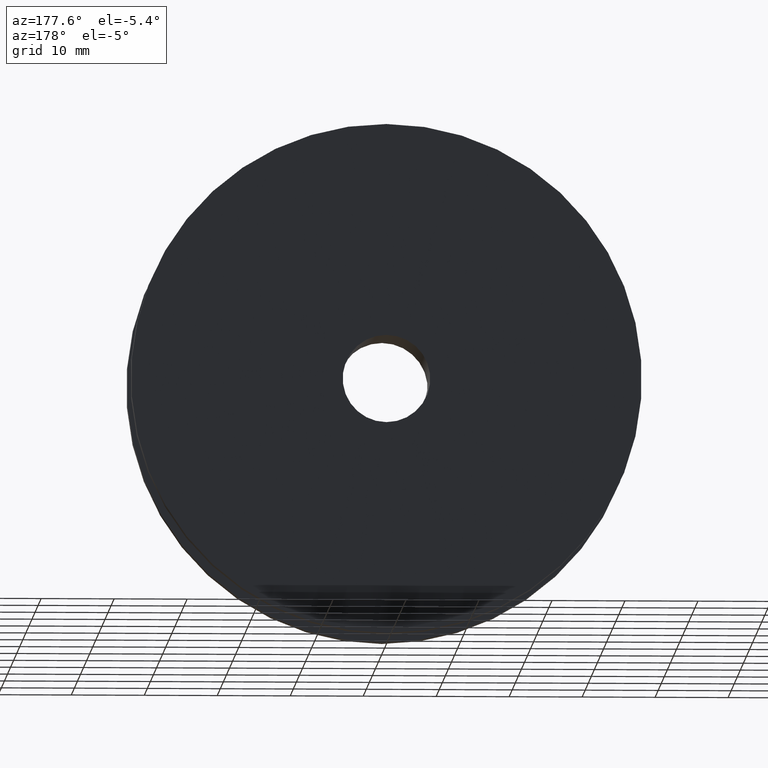
[diagram: clean part render]
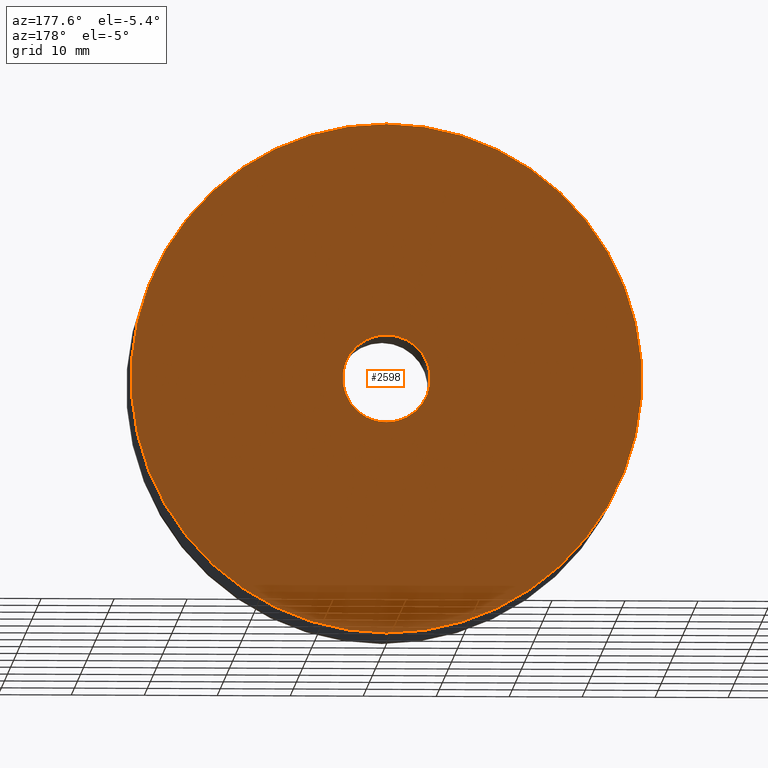
[diagram: same view with one face highlighted and labeled with its STEP entity id]
A machine part, auxiliary view. The second image highlights one B-rep face of the part: STEP entity #2598.
In plain terms, the highlighted planar face has unit normal (0, 1, 0).
Its self-contained STEP definition (entity closure, byte-faithful):
#88 = DIRECTION ( 'NONE',  ( 0.000000000000000000, 1.000000000000000000, 0.000000000000000000 ) ) ;
#150 = EDGE_CURVE ( 'NONE', #5781, #8850, #11963, .T. ) ;
#222 = AXIS2_PLACEMENT_3D ( 'NONE', #9701, #88, #2844 ) ;
#451 = CIRCLE ( 'NONE', #7125, 35.00000000000000711 ) ;
#766 = DIRECTION ( 'NONE',  ( 0.000000000000000000, 1.000000000000000000, 0.000000000000000000 ) ) ;
#1452 = CARTESIAN_POINT ( 'NONE',  ( 7.347880794884120722E-16, 2.000000000000000000, 6.000000000000000888 ) ) ;
#1868 = FACE_OUTER_BOUND ( 'NONE', #8585, .T. ) ;
#2598 = ADVANCED_FACE ( 'NONE', ( #1868, #5291 ), #11509, .T. ) ;
#2772 = ORIENTED_EDGE ( 'NONE', *, *, #10232, .F. ) ;
#2844 = DIRECTION ( 'NONE',  ( 0.000000000000000000, 0.000000000000000000, 1.000000000000000000 ) ) ;
#2922 = CARTESIAN_POINT ( 'NONE',  ( 0.000000000000000000, 2.000000000000000000, 0.000000000000000000 ) ) ;
#3161 = EDGE_LOOP ( 'NONE', ( #3390, #2772 ) ) ;
#3390 = ORIENTED_EDGE ( 'NONE', *, *, #150, .F. ) ;
#3880 = ORIENTED_EDGE ( 'NONE', *, *, #9329, .T. ) ;
#4204 = CARTESIAN_POINT ( 'NONE',  ( 0.000000000000000000, 2.000000000000000000, -35.00000000000000711 ) ) ;
#4634 = DIRECTION ( 'NONE',  ( 0.000000000000000000, -0.000000000000000000, 1.000000000000000000 ) ) ;
#4851 = DIRECTION ( 'NONE',  ( 0.000000000000000000, 1.000000000000000000, 0.000000000000000000 ) ) ;
#5291 = FACE_BOUND ( 'NONE', #3161, .T. ) ;
#5326 = CARTESIAN_POINT ( 'NONE',  ( 4.286263797015737285E-15, 2.000000000000000000, 35.00000000000000711 ) ) ;
#5542 = DIRECTION ( 'NONE',  ( 0.000000000000000000, 0.000000000000000000, 1.000000000000000000 ) ) ;
#5737 = CARTESIAN_POINT ( 'NONE',  ( 0.000000000000000000, 2.000000000000000000, 0.000000000000000000 ) ) ;
#5756 = ORIENTED_EDGE ( 'NONE', *, *, #7237, .T. ) ;
#5781 = VERTEX_POINT ( 'NONE', #6629 ) ;
#6310 = VERTEX_POINT ( 'NONE', #4204 ) ;
#6455 = CARTESIAN_POINT ( 'NONE',  ( 0.000000000000000000, 2.000000000000000000, 0.000000000000000000 ) ) ;
#6623 = CARTESIAN_POINT ( 'NONE',  ( 0.000000000000000000, 2.000000000000000000, 0.000000000000000000 ) ) ;
#6629 = CARTESIAN_POINT ( 'NONE',  ( 0.000000000000000000, 2.000000000000000000, -6.000000000000000888 ) ) ;
#7125 = AXIS2_PLACEMENT_3D ( 'NONE', #2922, #4851, #11611 ) ;
#7237 = EDGE_CURVE ( 'NONE', #6310, #11736, #8866, .T. ) ;
#7413 = DIRECTION ( 'NONE',  ( 0.000000000000000000, 0.000000000000000000, 1.000000000000000000 ) ) ;
#7469 = DIRECTION ( 'NONE',  ( 0.000000000000000000, 1.000000000000000000, 0.000000000000000000 ) ) ;
#8013 = AXIS2_PLACEMENT_3D ( 'NONE', #6455, #766, #7413 ) ;
#8585 = EDGE_LOOP ( 'NONE', ( #5756, #3880 ) ) ;
#8850 = VERTEX_POINT ( 'NONE', #1452 ) ;
#8866 = CIRCLE ( 'NONE', #11259, 35.00000000000000711 ) ;
#8923 = AXIS2_PLACEMENT_3D ( 'NONE', #5737, #7469, #4634 ) ;
#9329 = EDGE_CURVE ( 'NONE', #11736, #6310, #451, .T. ) ;
#9701 = CARTESIAN_POINT ( 'NONE',  ( 0.000000000000000000, 2.000000000000000000, 0.000000000000000000 ) ) ;
#10232 = EDGE_CURVE ( 'NONE', #8850, #5781, #11371, .T. ) ;
#11259 = AXIS2_PLACEMENT_3D ( 'NONE', #6623, #11347, #5542 ) ;
#11347 = DIRECTION ( 'NONE',  ( 0.000000000000000000, 1.000000000000000000, 0.000000000000000000 ) ) ;
#11371 = CIRCLE ( 'NONE', #222, 6.000000000000000888 ) ;
#11509 = PLANE ( 'NONE',  #8923 ) ;
#11611 = DIRECTION ( 'NONE',  ( 0.000000000000000000, 0.000000000000000000, 1.000000000000000000 ) ) ;
#11736 = VERTEX_POINT ( 'NONE', #5326 ) ;
#11963 = CIRCLE ( 'NONE', #8013, 6.000000000000000888 ) ;